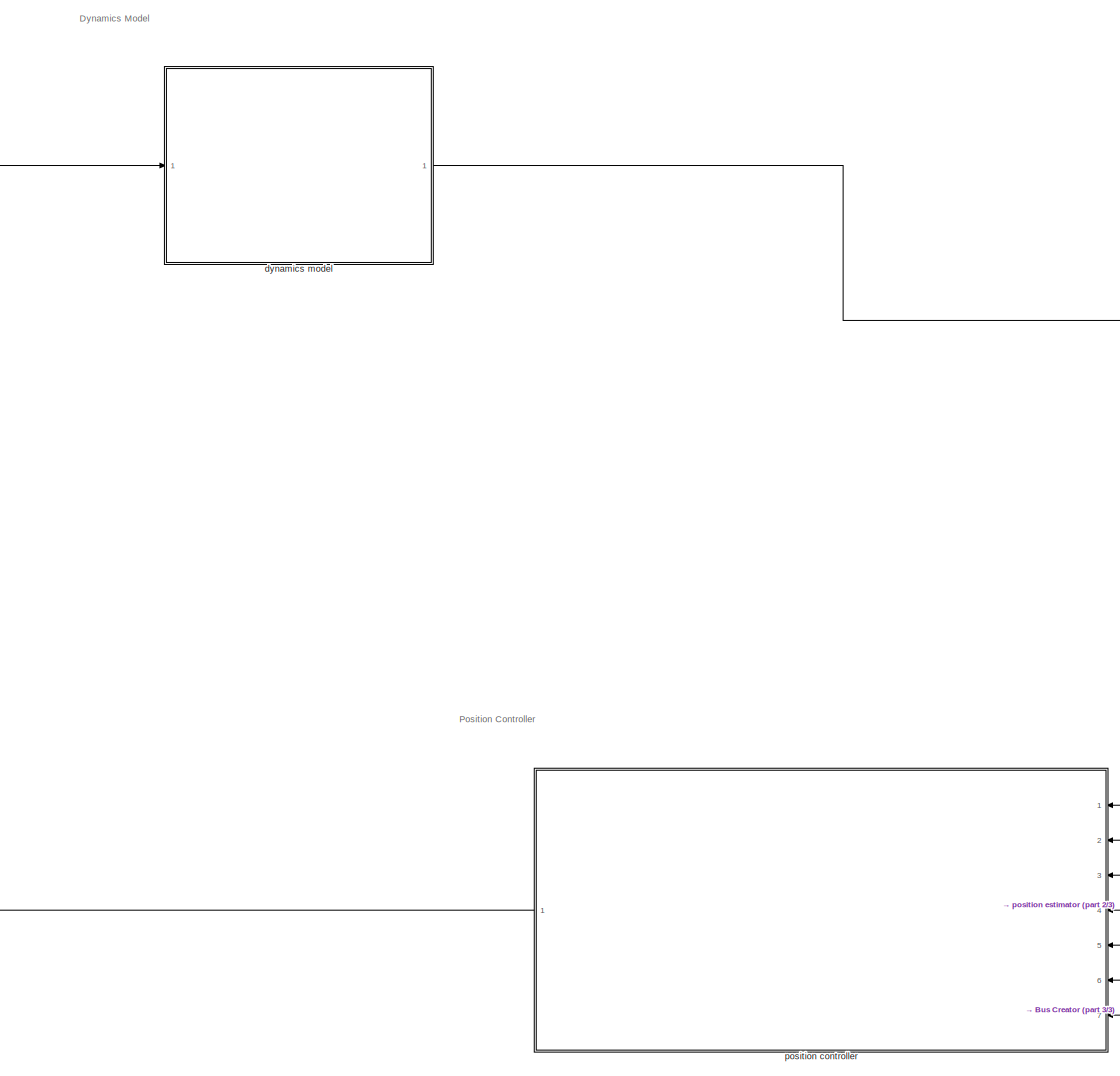
[diagram: root canvas - part 1/3, left side, full height]
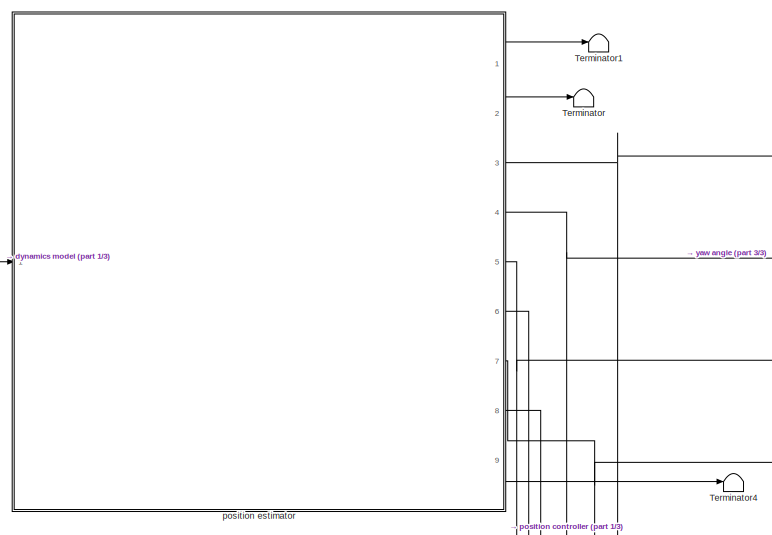
[diagram: root canvas - part 2/3, top center region]
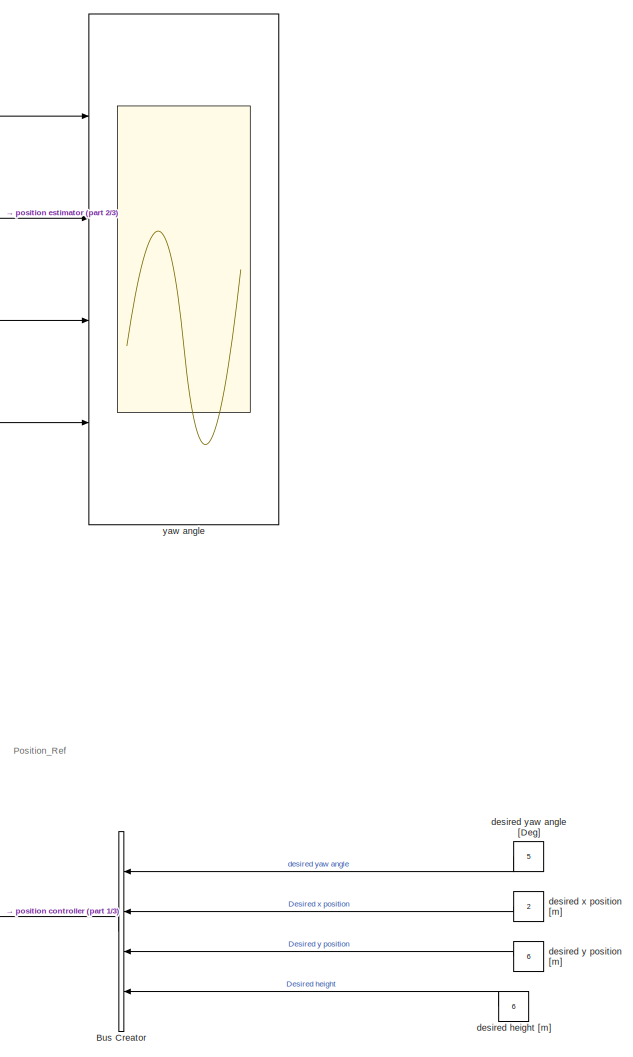
[diagram: root canvas - part 3/3, right side, full height]
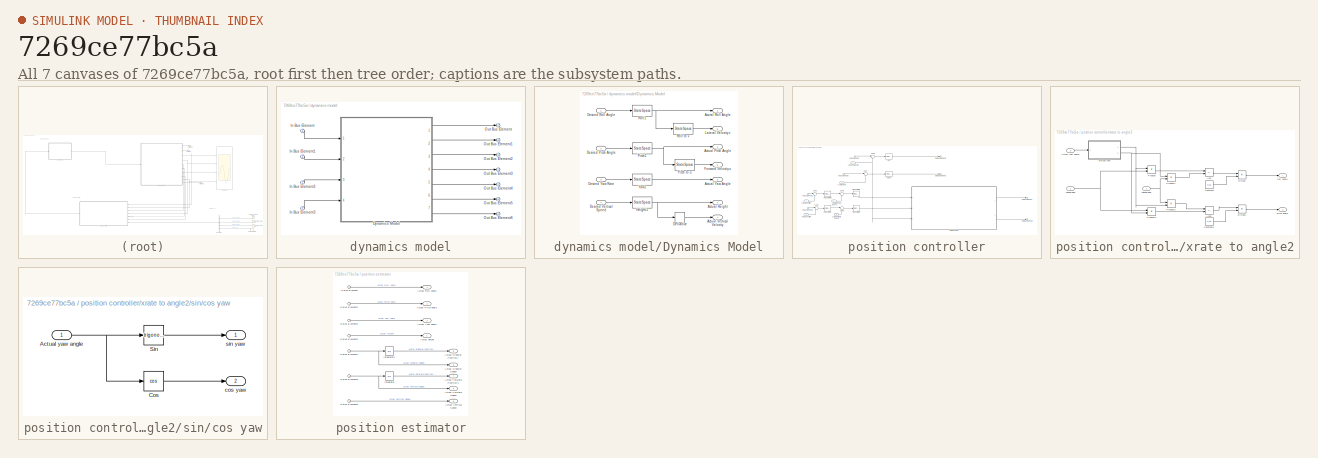
[diagram: thumbnail index - all 7 canvases of the model, root first then tree order]
MODEL slx_7269ce77bc5a
KIND model
CONFIG AbsTol = auto
CONFIG EnableMultiTasking = off
CONFIG FixedStep = auto
CONFIG MaxStep = auto
CONFIG MinStep = auto
CONFIG RelTol = 1e-3
CONFIG SampleTimeConstraint = Unconstrained
CONFIG SolverName = VariableStepAuto
CONFIG StartTime = 0.0
CONFIG StopTime = 10
BLOCK [BusCreator] Bus Creator
  DisplayOption = bar
  InheritFromInputs = on
  Inputs = 4
  Ports = [4, 1]
BLOCK [Terminator] Terminator
BLOCK [Terminator] Terminator1
BLOCK [Terminator] Terminator4
BLOCK [Constant] desired height [m]
  Value = 6
BLOCK [Constant] desired x position [m]
  Value = 2
BLOCK [Constant] desired y position [m]
  Value = 6
BLOCK [Constant] desired yaw angle [Deg]
  Value = 5
BLOCK [SubSystem] dynamics model
  Ports = [1, 1]
  RequestExecContextInheritance = off
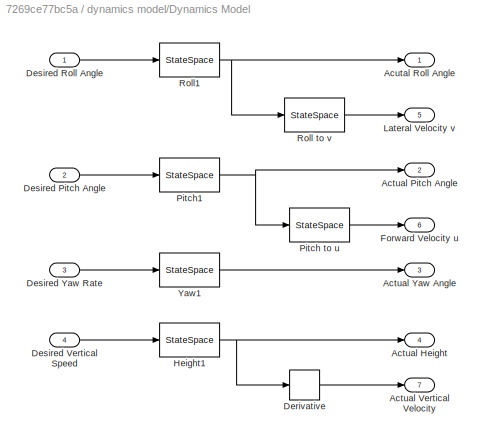
BLOCK [SubSystem] dynamics model/Dynamics Model
  Ports = [4, 7]
  RequestExecContextInheritance = off
BLOCK [Outport] dynamics model/Dynamics Model/Actual Height
  Port = 4
BLOCK [Outport] dynamics model/Dynamics Model/Actual Pitch Angle
  Port = 2
BLOCK [Outport] dynamics model/Dynamics Model/Actual Vertical Velocity
  Port = 7
BLOCK [Outport] dynamics model/Dynamics Model/Actual Yaw Angle
  Port = 3
BLOCK [Outport] dynamics model/Dynamics Model/Acutal Roll Angle
BLOCK [Derivative] dynamics model/Dynamics Model/Derivative
BLOCK [Inport] dynamics model/Dynamics Model/Desired Pitch Angle
  Port = 2
BLOCK [Inport] dynamics model/Dynamics Model/Desired Roll Angle
BLOCK [Inport] dynamics model/Dynamics Model/Desired Vertical Speed
  Port = 4
BLOCK [Inport] dynamics model/Dynamics Model/Desired Yaw Rate
  Port = 3
BLOCK [Outport] dynamics model/Dynamics Model/Forward Velocity u
  Port = 6
BLOCK [StateSpace] dynamics model/Dynamics Model/Height1
  A = [-5.82 -3.6046e-6; 3.8147e-6 0]
  B = [1024;0]
  C = [1.4907e-4 1.3191e3]
  D = 0
  InitialCondition = 0
  Ports = [1, 1]
BLOCK [Outport] dynamics model/Dynamics Model/Lateral Velocity v
  Port = 5
BLOCK [StateSpace] dynamics model/Dynamics Model/Pitch to u
  A = [-0.665]
  B = [2]
  C = [-3.0772]
  D = 0
  InitialCondition = 0
  Ports = [1, 1]
BLOCK [StateSpace] dynamics model/Dynamics Model/Pitch1
  A = [-3.9784 -2.9796; 4 0]
  B = [2;0]
  C = [1.2569 0.6083]
  D = 0
  InitialCondition = 0
  Ports = [1, 1]
BLOCK [StateSpace] dynamics model/Dynamics Model/Roll to v
  A = [-0.4596]
  B = [2]
  C = [2.3868]
  D = 0
  InitialCondition = 0
  Ports = [1, 1]
BLOCK [StateSpace] dynamics model/Dynamics Model/Roll1
  A = [-4.2683 -3.1716; 4 0]
  B = [2;0]
  C = [0.7417 0.4405]
  D = 0
  InitialCondition = 0
  Ports = [1, 1]
BLOCK [StateSpace] dynamics model/Dynamics Model/Yaw1
  A = [-0.0059]
  B = [1]
  C = [1.2653]
  D = 0
  InitialCondition = 0
  Ports = [1, 1]
BLOCK [Inport] dynamics model/In Bus Element
BLOCK [Inport] dynamics model/In Bus Element1
BLOCK [Inport] dynamics model/In Bus Element2
BLOCK [Inport] dynamics model/In Bus Element3
BLOCK [Outport] dynamics model/Out Bus Element
BLOCK [Outport] dynamics model/Out Bus Element1
BLOCK [Outport] dynamics model/Out Bus Element2
BLOCK [Outport] dynamics model/Out Bus Element3
BLOCK [Outport] dynamics model/Out Bus Element4
BLOCK [Outport] dynamics model/Out Bus Element5
BLOCK [Outport] dynamics model/Out Bus Element6
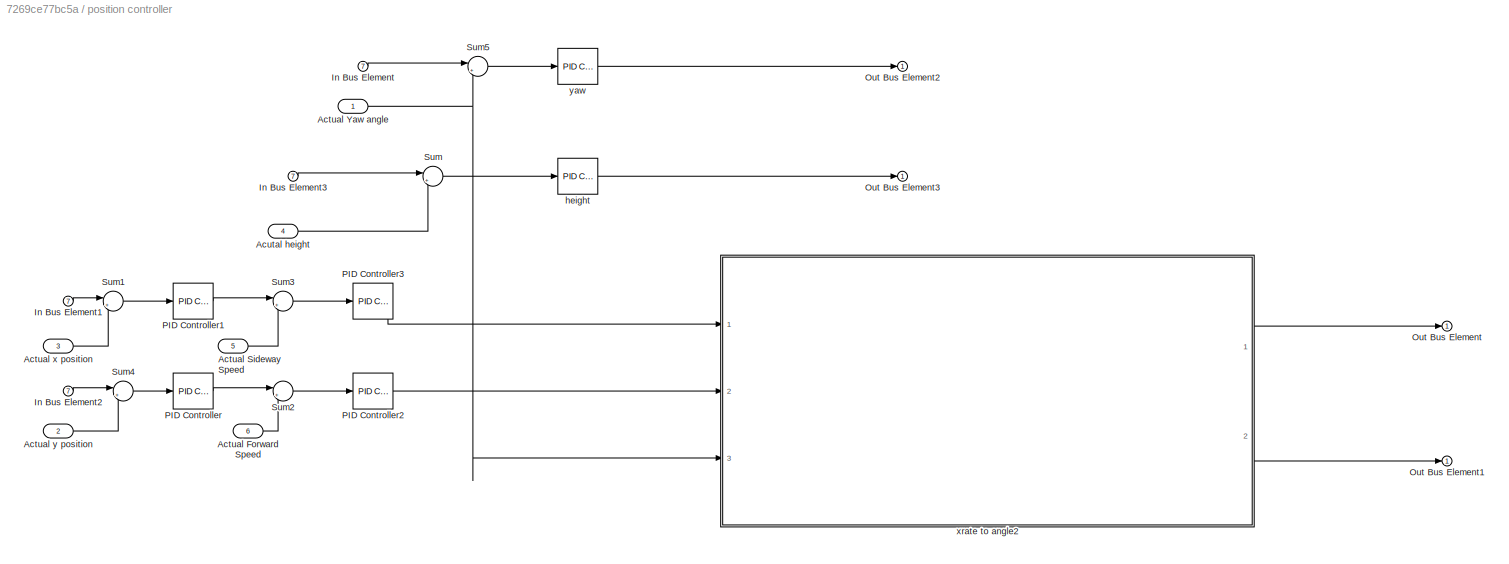
BLOCK [SubSystem] position controller
  Ports = [7, 1]
  RequestExecContextInheritance = off
BLOCK [Inport] position controller/Actual Forward Speed
  Port = 6
BLOCK [Inport] position controller/Actual Sideway Speed
  Port = 5
BLOCK [Inport] position controller/Actual Yaw angle
BLOCK [Inport] position controller/Actual x position
  Port = 3
BLOCK [Inport] position controller/Actual y position
  Port = 2
BLOCK [Inport] position controller/Acutal height
  Port = 4
BLOCK [Inport] position controller/In Bus Element
  Port = 7
BLOCK [Inport] position controller/In Bus Element1
  Port = 7
BLOCK [Inport] position controller/In Bus Element2
  Port = 7
BLOCK [Inport] position controller/In Bus Element3
  Port = 7
BLOCK [Outport] position controller/Out Bus Element
BLOCK [Outport] position controller/Out Bus Element1
BLOCK [Outport] position controller/Out Bus Element2
BLOCK [Outport] position controller/Out Bus Element3
BLOCK [Reference] position controller/PID Controller  REF=slpidlib/PID Controller
  Ports = [1, 1]
  SourceBlock = slpidlib/PID Controller
  SourceProductBaseCode = SL
  SourceType = PID 1dof
BLOCK [Reference] position controller/PID Controller1  REF=slpidlib/PID Controller
  Ports = [1, 1]
  SourceBlock = slpidlib/PID Controller
  SourceProductBaseCode = SL
  SourceType = PID 1dof
BLOCK [Reference] position controller/PID Controller2  REF=slpidlib/PID Controller
  Ports = [1, 1]
  SourceBlock = slpidlib/PID Controller
  SourceProductBaseCode = SL
  SourceType = PID 1dof
BLOCK [Reference] position controller/PID Controller3  REF=slpidlib/PID Controller
  Ports = [1, 1]
  SourceBlock = slpidlib/PID Controller
  SourceProductBaseCode = SL
  SourceType = PID 1dof
BLOCK [Sum] position controller/Sum
  Inputs = |+-
  Ports = [2, 1]
BLOCK [Sum] position controller/Sum1
  Inputs = |+-
  Ports = [2, 1]
BLOCK [Sum] position controller/Sum2
  Inputs = |+-
  Ports = [2, 1]
BLOCK [Sum] position controller/Sum3
  Inputs = |+-
  Ports = [2, 1]
BLOCK [Sum] position controller/Sum4
  Inputs = |+-
  Ports = [2, 1]
BLOCK [Sum] position controller/Sum5
  Inputs = |+-
  Ports = [2, 1]
BLOCK [Reference] position controller/height  REF=slpidlib/PID Controller
  Ports = [1, 1]
  SourceBlock = slpidlib/PID Controller
  SourceProductBaseCode = SL
  SourceType = PID 1dof
BLOCK [SubSystem] position controller/xrate to angle2
  Ports = [3, 2]
  RequestExecContextInheritance = off
BLOCK [Inport] position controller/xrate to angle2/Actual yaw angle
  Port = 3
BLOCK [Sum] position controller/xrate to angle2/Add
  IconShape = rectangular
  Inputs = -+
  Ports = [2, 1]
BLOCK [Sum] position controller/xrate to angle2/Add1
  IconShape = rectangular
  Inputs = +-
  Ports = [2, 1]
BLOCK [Constant] position controller/xrate to angle2/Constant
  Value = 9.81
BLOCK [Constant] position controller/xrate to angle2/Constant1
  Value = 9.81
BLOCK [Product] position controller/xrate to angle2/Divide
  Inputs = */
  Ports = [2, 1]
BLOCK [Product] position controller/xrate to angle2/Divide1
  Inputs = */
  Ports = [2, 1]
BLOCK [Product] position controller/xrate to angle2/Product
  Ports = [2, 1]
BLOCK [Product] position controller/xrate to angle2/Product1
  Ports = [2, 1]
BLOCK [Product] position controller/xrate to angle2/Product2
  Ports = [2, 1]
BLOCK [Product] position controller/xrate to angle2/Product3
  Ports = [2, 1]
BLOCK [Outport] position controller/xrate to angle2/pitch angle
  Port = 2
BLOCK [Outport] position controller/xrate to angle2/roll angle
BLOCK [SubSystem] position controller/xrate to angle2/sin//cos yaw
  Ports = [1, 2]
  RequestExecContextInheritance = off
BLOCK [Inport] position controller/xrate to angle2/sin//cos yaw/Actual yaw angle
BLOCK [Trigonometry] position controller/xrate to angle2/sin//cos yaw/Cos
  Operator = cos
  Ports = [1, 1]
BLOCK [Trigonometry] position controller/xrate to angle2/sin//cos yaw/Sin
  Ports = [1, 1]
BLOCK [Outport] position controller/xrate to angle2/sin//cos yaw/cos yaw
  Port = 2
BLOCK [Outport] position controller/xrate to angle2/sin//cos yaw/sin yaw
BLOCK [Inport] position controller/xrate to angle2/xdoubledot
BLOCK [Inport] position controller/xrate to angle2/ydoubledot
  Port = 2
BLOCK [Reference] position controller/yaw  REF=slpidlib/PID Controller
  Ports = [1, 1]
  SourceBlock = slpidlib/PID Controller
  SourceProductBaseCode = SL
  SourceType = PID 1dof
BLOCK [SubSystem] position estimator
  Ports = [1, 9]
  RequestExecContextInheritance = off
BLOCK [Outport] position estimator/Actual Forward Position x
  Port = 7
BLOCK [Outport] position estimator/Actual Forward Speed
  Port = 8
BLOCK [Outport] position estimator/Actual Pitch angle
  Port = 2
BLOCK [Outport] position estimator/Actual Roll angle
BLOCK [Outport] position estimator/Actual Sideway Position y
  Port = 5
BLOCK [Outport] position estimator/Actual Sideway Speed
  Port = 6
BLOCK [Outport] position estimator/Actual Vertical Speed
  Port = 9
BLOCK [Outport] position estimator/Actual Yaw angle
  Port = 3
BLOCK [Outport] position estimator/Actual height
  Port = 4
BLOCK [Inport] position estimator/In Bus Element
BLOCK [Inport] position estimator/In Bus Element1
BLOCK [Inport] position estimator/In Bus Element2
BLOCK [Inport] position estimator/In Bus Element3
BLOCK [Inport] position estimator/In Bus Element4
BLOCK [Inport] position estimator/In Bus Element5
BLOCK [Inport] position estimator/In Bus Element6
BLOCK [Integrator] position estimator/Integrator
  Ports = [1, 1]
BLOCK [Integrator] position estimator/Integrator1
  Ports = [1, 1]
BLOCK [Scope] yaw angle
  Floating = off
  NumInputPorts = 4
  Ports = [4]
  ScopeSpecificationString = Simulink.scopes.TimeScopeBlockCfg('CurrentConfiguration', extmgr.ConfigurationSet(extmgr.Configuration('Core','General UI',true),extmgr.Configuration('Core','Source UI',true),extmgr.Configuration('Sources','WiredSimulink',true,'DataLoggingVariableName','ScopeData3'),extmgr.Configuration('Visuals','Time Domain',true,'SerializedDisplays',{struct('MinYLimReal','1.85825','MaxYLimReal','6.66726','YLabe...<+3654ch>
ANNOTATION (root): Dynamics Model
ANNOTATION (root): Position Controller
ANNOTATION (root): Position_Ref
LINE Bus Creator:1 -> position controller:7
LINE desired height [m]:1 -> Bus Creator:4
LINE desired x position [m]:1 -> Bus Creator:2
LINE desired y position [m]:1 -> Bus Creator:3
LINE desired yaw angle [Deg]:1 -> Bus Creator:1
LINE dynamics model/Dynamics Model/Derivative:1 -> dynamics model/Dynamics Model/Actual Vertical Velocity:1
LINE dynamics model/Dynamics Model/Desired Pitch Angle:1 -> dynamics model/Dynamics Model/Pitch1:1
LINE dynamics model/Dynamics Model/Desired Roll Angle:1 -> dynamics model/Dynamics Model/Roll1:1
LINE dynamics model/Dynamics Model/Desired Vertical Speed:1 -> dynamics model/Dynamics Model/Height1:1
LINE dynamics model/Dynamics Model/Desired Yaw Rate:1 -> dynamics model/Dynamics Model/Yaw1:1
NET dynamics model/Dynamics Model/Height1:1 -> dynamics model/Dynamics Model/Actual Height:1, dynamics model/Dynamics Model/Derivative:1
LINE dynamics model/Dynamics Model/Pitch to u:1 -> dynamics model/Dynamics Model/Forward Velocity u:1
NET dynamics model/Dynamics Model/Pitch1:1 -> dynamics model/Dynamics Model/Actual Pitch Angle:1, dynamics model/Dynamics Model/Pitch to u:1
LINE dynamics model/Dynamics Model/Roll to v:1 -> dynamics model/Dynamics Model/Lateral Velocity v:1
NET dynamics model/Dynamics Model/Roll1:1 -> dynamics model/Dynamics Model/Acutal Roll Angle:1, dynamics model/Dynamics Model/Roll to v:1
LINE dynamics model/Dynamics Model/Yaw1:1 -> dynamics model/Dynamics Model/Actual Yaw Angle:1
LINE dynamics model/Dynamics Model:1 -> dynamics model/Out Bus Element:1
LINE dynamics model/Dynamics Model:2 -> dynamics model/Out Bus Element1:1
LINE dynamics model/Dynamics Model:3 -> dynamics model/Out Bus Element2:1
LINE dynamics model/Dynamics Model:4 -> dynamics model/Out Bus Element3:1
LINE dynamics model/Dynamics Model:5 -> dynamics model/Out Bus Element4:1
LINE dynamics model/Dynamics Model:6 -> dynamics model/Out Bus Element5:1
LINE dynamics model/Dynamics Model:7 -> dynamics model/Out Bus Element6:1
LINE dynamics model/In Bus Element1:1 -> dynamics model/Dynamics Model:2
LINE dynamics model/In Bus Element2:1 -> dynamics model/Dynamics Model:3
LINE dynamics model/In Bus Element3:1 -> dynamics model/Dynamics Model:4
LINE dynamics model/In Bus Element:1 -> dynamics model/Dynamics Model:1
LINE dynamics model:1 -> position estimator:1
LINE position controller/Actual Forward Speed:1 -> position controller/Sum2:2
LINE position controller/Actual Sideway Speed:1 -> position controller/Sum3:2
NET position controller/Actual Yaw angle:1 -> position controller/Sum5:2, position controller/xrate to angle2:3
LINE position controller/Actual x position:1 -> position controller/Sum1:2
LINE position controller/Actual y position:1 -> position controller/Sum4:2
LINE position controller/Acutal height:1 -> position controller/Sum:2
LINE position controller/In Bus Element1:1 -> position controller/Sum1:1
LINE position controller/In Bus Element2:1 -> position controller/Sum4:1
LINE position controller/In Bus Element3:1 -> position controller/Sum:1
LINE position controller/In Bus Element:1 -> position controller/Sum5:1
LINE position controller/PID Controller1:1 -> position controller/Sum3:1
LINE position controller/PID Controller2:1 -> position controller/xrate to angle2:2
LINE position controller/PID Controller3:1 -> position controller/xrate to angle2:1
LINE position controller/PID Controller:1 -> position controller/Sum2:1
LINE position controller/Sum1:1 -> position controller/PID Controller1:1
LINE position controller/Sum2:1 -> position controller/PID Controller2:1
LINE position controller/Sum3:1 -> position controller/PID Controller3:1
LINE position controller/Sum4:1 -> position controller/PID Controller:1
LINE position controller/Sum5:1 -> position controller/yaw:1
LINE position controller/Sum:1 -> position controller/height:1
LINE position controller/height:1 -> position controller/Out Bus Element3:1
LINE position controller/xrate to angle2/Actual yaw angle:1 -> position controller/xrate to angle2/sin//cos yaw:1
LINE position controller/xrate to angle2/Add1:1 -> position controller/xrate to angle2/Divide1:1
LINE position controller/xrate to angle2/Add:1 -> position controller/xrate to angle2/Divide:1
LINE position controller/xrate to angle2/Constant1:1 -> position controller/xrate to angle2/Divide1:2
LINE position controller/xrate to angle2/Constant:1 -> position controller/xrate to angle2/Divide:2
LINE position controller/xrate to angle2/Divide1:1 -> position controller/xrate to angle2/pitch angle:1
LINE position controller/xrate to angle2/Divide:1 -> position controller/xrate to angle2/roll angle:1
LINE position controller/xrate to angle2/Product1:1 -> position controller/xrate to angle2/Add:2
LINE position controller/xrate to angle2/Product2:1 -> position controller/xrate to angle2/Add1:2
LINE position controller/xrate to angle2/Product3:1 -> position controller/xrate to angle2/Add1:1
LINE position controller/xrate to angle2/Product:1 -> position controller/xrate to angle2/Add:1
NET position controller/xrate to angle2/sin//cos yaw/Actual yaw angle:1 -> position controller/xrate to angle2/sin//cos yaw/Cos:1, position controller/xrate to angle2/sin//cos yaw/Sin:1
LINE position controller/xrate to angle2/sin//cos yaw/Cos:1 -> position controller/xrate to angle2/sin//cos yaw/cos yaw:1
LINE position controller/xrate to angle2/sin//cos yaw/Sin:1 -> position controller/xrate to angle2/sin//cos yaw/sin yaw:1
NET position controller/xrate to angle2/sin//cos yaw:1 -> position controller/xrate to angle2/Product3:2, position controller/xrate to angle2/Product:1
NET position controller/xrate to angle2/sin//cos yaw:2 -> position controller/xrate to angle2/Product1:1, position controller/xrate to angle2/Product2:2
NET position controller/xrate to angle2/xdoubledot:1 -> position controller/xrate to angle2/Product1:2, position controller/xrate to angle2/Product3:1
NET position controller/xrate to angle2/ydoubledot:1 -> position controller/xrate to angle2/Product2:1, position controller/xrate to angle2/Product:2
LINE position controller/xrate to angle2:1 -> position controller/Out Bus Element:1
LINE position controller/xrate to angle2:2 -> position controller/Out Bus Element1:1
LINE position controller/yaw:1 -> position controller/Out Bus Element2:1
LINE position controller:1 -> dynamics model:1
LINE position estimator/In Bus Element1:1 -> position estimator/Actual Pitch angle:1
LINE position estimator/In Bus Element2:1 -> position estimator/Actual Yaw angle:1
LINE position estimator/In Bus Element3:1 -> position estimator/Actual height:1
NET position estimator/In Bus Element4:1 -> position estimator/Actual Sideway Speed:1, position estimator/Integrator1:1
NET position estimator/In Bus Element5:1 -> position estimator/Actual Forward Speed:1, position estimator/Integrator:1
LINE position estimator/In Bus Element6:1 -> position estimator/Actual Vertical Speed:1
LINE position estimator/In Bus Element:1 -> position estimator/Actual Roll angle:1
LINE position estimator/Integrator1:1 -> position estimator/Actual Sideway Position y:1
LINE position estimator/Integrator:1 -> position estimator/Actual Forward Position x:1
LINE position estimator:1 -> Terminator1:1
LINE position estimator:2 -> Terminator:1
NET position estimator:3 -> position controller:1, yaw angle:1
NET position estimator:4 -> position controller:4, yaw angle:2
NET position estimator:5 -> position controller:3, yaw angle:3
LINE position estimator:6 -> position controller:5
NET position estimator:7 -> position controller:2, yaw angle:4
LINE position estimator:8 -> position controller:6
LINE position estimator:9 -> Terminator4:1
note: NET lines group one-source signal fan-out (src -> all destinations, sorted); 1:1 wires keep LINE
